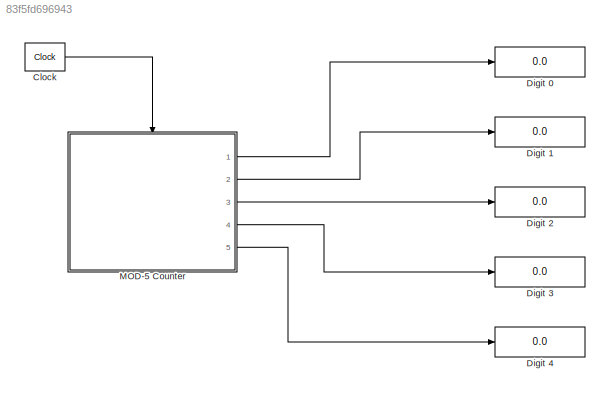
MODEL slx_83f5fd696943
KIND model
CONFIG AbsTol = auto
CONFIG EnableMultiTasking = off
CONFIG FixedStep = auto
CONFIG MaxStep = auto
CONFIG MinStep = auto
CONFIG RelTol = 1e-3
CONFIG SampleTimeConstraint = Unconstrained
CONFIG Solver = VariableStepAuto
CONFIG SolverName = VariableStepAuto
CONFIG StartTime = 0.0
CONFIG StopTime = 10000
BLOCK [Reference] Clock  REF=simulink_extras/Flip Flops/Clock
  Ports = [0, 1]
  SourceBlock = simulink_extras/Flip Flops/Clock
  SourceProductBaseCode = SL
  SourceType = Digital clock
BLOCK [Display] Digit 0
  Decimation = 1
  Ports = [1]
BLOCK [Display] Digit 1
  Decimation = 1
  Ports = [1]
BLOCK [Display] Digit 2
  Decimation = 1
  Ports = [1]
BLOCK [Display] Digit 3
  Decimation = 1
  Ports = [1]
BLOCK [Display] Digit 4
  Decimation = 1
  Ports = [1]
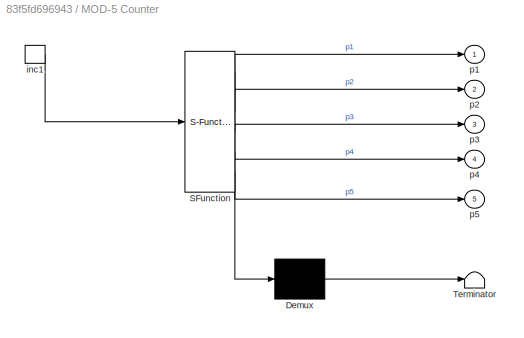
BLOCK [SubSystem] MOD-5 Counter
  ErrorFcn = Stateflow.Translate.translate
  PermitHierarchicalResolution = ExplicitOnly
  Ports = [0, 5, 0, 1]
  RequestExecContextInheritance = off
  SFBlockType = Chart
  TreatAsAtomicUnit = on
BLOCK [Demux] MOD-5 Counter/ Demux 
  Outputs = 1
  Ports = [1, 1]
BLOCK [S-Function] MOD-5 Counter/ SFunction 
  EnableBusSupport = on
  FunctionName = sf_sfun
  PortCounts = [1 6]
  Ports = [1, 6]
  SFcnIsStateOwnerBlock = off
  SFunctionDeploymentMode = off
  Tag = Stateflow S-Function 3
BLOCK [Terminator] MOD-5 Counter/ Terminator 
BLOCK [TriggerPort] MOD-5 Counter/inc1
  Ports = [0, 1]
  ShowOutputPort = on
  StatesWhenEnabling = held
  VariantControl = (inherit)
BLOCK [Outport] MOD-5 Counter/p1
BLOCK [Outport] MOD-5 Counter/p2
  Port = 2
BLOCK [Outport] MOD-5 Counter/p3
  Port = 3
BLOCK [Outport] MOD-5 Counter/p4
  Port = 4
BLOCK [Outport] MOD-5 Counter/p5
  Port = 5
LINE Clock:1 -> MOD-5 Counter:trigger
LINE MOD-5 Counter:1 -> Digit 0:1
LINE MOD-5 Counter:2 -> Digit 1:1
LINE MOD-5 Counter:3 -> Digit 2:1
LINE MOD-5 Counter:4 -> Digit 3:1
LINE MOD-5 Counter:5 -> Digit 4:1
CHART MOD-5 Counter states=30 transitions=30
  STATE_LABEL 'digit1'
  STATE_LABEL 'one\nentry:\np1=1;'
  STATE_LABEL 'two\nentry:\np1=2;'
  STATE_LABEL 'zero\nentry:\np1=0;'
  STATE_LABEL 'three\nentry:\np1=3;'
  STATE_LABEL 'four\nentry:\np1=4;'
  STATE_LABEL 'inc1'
  STATE_LABEL 'inc1'
  STATE_LABEL 'inc1'
  STATE_LABEL 'inc1/{digit2.inc2;}'
  STATE_LABEL 'inc1'
  STATE_LABEL 'one\nentry:\np1=1;'
  STATE_LABEL 'two\nentry:\np1=2;'
  STATE_LABEL 'zero\nentry:\np1=0;'
  STATE_LABEL 'three\nentry:\np1=3;'
  STATE_LABEL 'four\nentry:\np1=4;'
  STATE_LABEL 'digit2'
  STATE_LABEL 'one\nentry:\np2=1;'
  STATE_LABEL 'two\nentry:\np2=2;'
  STATE_LABEL 'zero\nentry:\np2=0;'
  STATE_LABEL 'three\nentry:\np2=3;'
  STATE_LABEL 'four\nentry:\np2=4;'
  STATE_LABEL 'inc2'
  STATE_LABEL 'inc2'
  STATE_LABEL 'inc2'
  STATE_LABEL 'inc2/{digit3.inc3;}'
  STATE_LABEL 'inc2'
  STATE_LABEL 'one\nentry:\np2=1;'
  STATE_LABEL 'two\nentry:\np2=2;'
  STATE_LABEL 'zero\nentry:\np2=0;'
  STATE_LABEL 'three\nentry:\np2=3;'
  STATE_LABEL 'four\nentry:\np2=4;'
  STATE_LABEL 'digit3'
  STATE_LABEL 'one\nentry:\np3=1;'
  STATE_LABEL 'two\nentry:\np3=2;'
  STATE_LABEL 'zero\nentry:\np3=0;'
  STATE_LABEL 'three\nentry:\np3=3;'
  STATE_LABEL 'four\nentry:\np3=4;'
  STATE_LABEL 'inc3'
  STATE_LABEL 'inc3'
CHART  states=0 transitions=0
